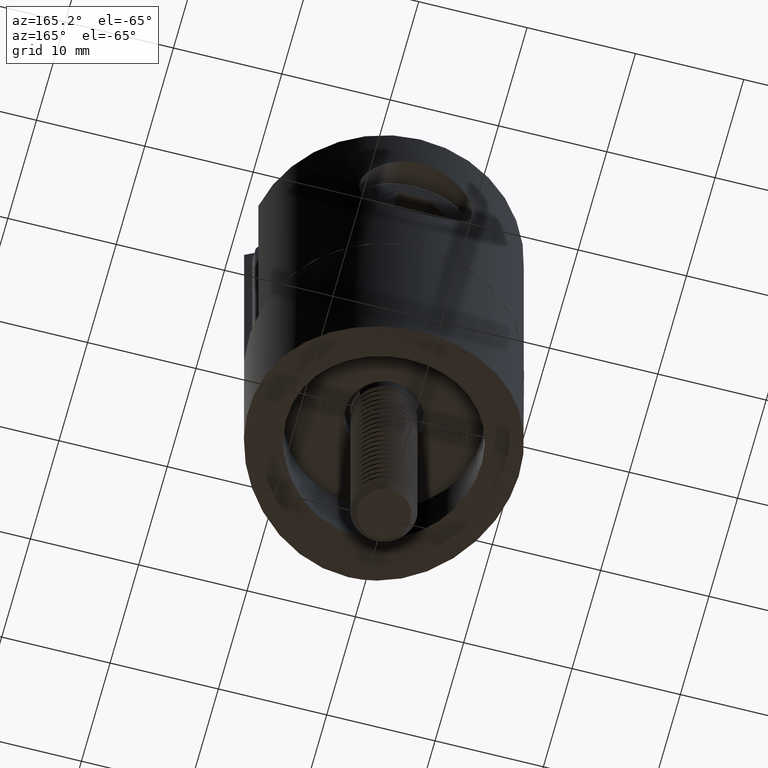
[diagram: clean part render]
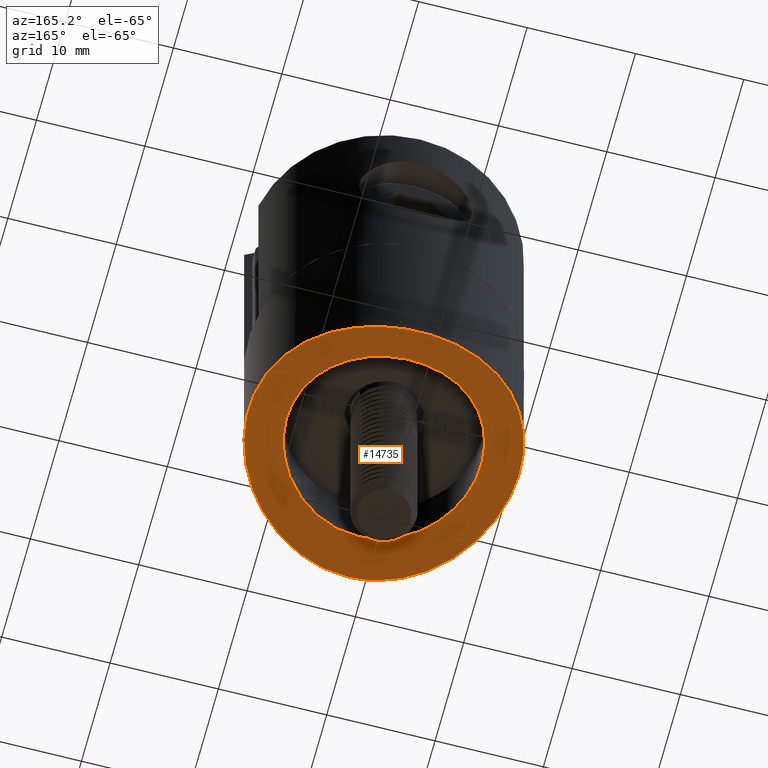
[diagram: same view with one face highlighted and labeled with its STEP entity id]
A machine part, auxiliary view. The second image highlights one B-rep face of the part: STEP entity #14735.
In plain terms, the highlighted cylindrical surface (partial cylindrical patch) has radius 30.15 mm, axis along (1, 0, 0).
Its self-contained STEP definition (entity closure, byte-faithful):
#318 = CARTESIAN_POINT ( 'NONE',  ( 1.185822052375740343, -8.940945296865521641, -1.355963288929341592 ) ) ;
#530 = CARTESIAN_POINT ( 'NONE',  ( 9.121130435062973163, -8.556701006457322123, -1.238168141207277140 ) ) ;
#549 = CARTESIAN_POINT ( 'NONE',  ( 8.538774403114143041, 2.905219611666121082, -0.1352452541652090223 ) ) ;
#606 = CARTESIAN_POINT ( 'NONE',  ( 12.50046669840313918, 0.3987437818803017953, 0.0001934901100499889707 ) ) ;
#681 = CARTESIAN_POINT ( 'NONE',  ( 12.09482616786062614, 3.262078009258805977, -0.1660781925552853588 ) ) ;
#700 = CARTESIAN_POINT ( 'NONE',  ( -7.150411678394052117, -5.497470882763403566, -0.5012341789338921050 ) ) ;
#777 = CARTESIAN_POINT ( 'NONE',  ( -5.489248077110187474, -7.138247435269766683, -0.8565750722591767286 ) ) ;
#852 = CARTESIAN_POINT ( 'NONE',  ( -8.523417378248598908, -2.905080082330754099, -0.1389306601383623885 ) ) ;
#911 = CARTESIAN_POINT ( 'NONE',  ( 1.658381484336094225, 12.39636410885525919, -2.666283003099221727 ) ) ;
#984 = CARTESIAN_POINT ( 'NONE',  ( 6.633394415637861030, 10.60249624133748902, -1.924697154711569214 ) ) ;
#1055 = CARTESIAN_POINT ( 'NONE',  ( -3.262972752893349426, 12.09486715300379700, -2.531741867291250170 ) ) ;
#1127 = CARTESIAN_POINT ( 'NONE',  ( 0.4268192800074673832, 12.49948415367837207, -2.713065109207505099 ) ) ;
#1213 = CARTESIAN_POINT ( 'NONE',  ( -4.045518074302074218, 11.85558442828115489, -2.426658673275744693 ) ) ;
#1481 = EDGE_LOOP ( 'NONE', ( #9146 ) ) ;
#2105 = CARTESIAN_POINT ( 'NONE',  ( 4.001985308507586048, -8.082779981349148102, -1.102682765100396978 ) ) ;
#2175 = CARTESIAN_POINT ( 'NONE',  ( 8.421668585497533499, -3.187678065357707258, -0.1677500759989492551 ) ) ;
#2253 = CARTESIAN_POINT ( 'NONE',  ( 8.941615196116021735, -1.182970758504127140, -0.01758196660093610392 ) ) ;
#2329 = CARTESIAN_POINT ( 'NONE',  ( -3.252606517456513302E-16, -9.000000000000001776, -1.374619898253298667 ) ) ;
#2343 = EDGE_CURVE ( 'NONE', #20523, #20523, #11895, .T. ) ;
#2459 = CARTESIAN_POINT ( 'NONE',  ( 11.85499949853712565, 4.048508168866431944, -0.2630838204178065354 ) ) ;
#2475 = CARTESIAN_POINT ( 'NONE',  ( 5.496716112329071535, 7.150413148691908027, -0.8582410347823666852 ) ) ;
#2553 = CARTESIAN_POINT ( 'NONE',  ( 4.524716325586240373, 7.801874030609413424, -1.024988187403319317 ) ) ;
#2630 = CARTESIAN_POINT ( 'NONE',  ( -2.344530190291385985, -8.709286904477878011, -1.285047345396048701 ) ) ;
#2685 = AXIS2_PLACEMENT_3D ( 'NONE', #4926, #6729, #15625 ) ;
#2686 = CARTESIAN_POINT ( 'NONE',  ( -2.068747452225058403, -12.33442740760718515, -2.638325178309926411 ) ) ;
#2702 = CARTESIAN_POINT ( 'NONE',  ( 2.913594913920761531, 8.535557776549191900, -1.232500696866663636 ) ) ;
#2753 = CARTESIAN_POINT ( 'NONE',  ( -6.272618286738919302, 10.81993244727826209, -2.007601374604049305 ) ) ;
#2768 = CARTESIAN_POINT ( 'NONE',  ( -8.925883202786161874, 1.190312538106021778, -0.02205456905166851625 ) ) ;
#2831 = CARTESIAN_POINT ( 'NONE',  ( -8.242190596530241109, 9.406387361605119679, -1.503606732901479504 ) ) ;
#2904 = CARTESIAN_POINT ( 'NONE',  ( -11.37492637110342386, 5.198871543229085290, -0.4491531032744996432 ) ) ;
#2982 = CARTESIAN_POINT ( 'NONE',  ( -1.633113527107586282, 12.39978903973062963, -2.667829302353221355 ) ) ;
#3299 = CYLINDRICAL_SURFACE ( 'NONE', #2685, 30.14999999999999147 ) ;
#3934 = CARTESIAN_POINT ( 'NONE',  ( 8.767144284894179407, -2.055518577043168094, -0.06873959641688333344 ) ) ;
#4075 = CARTESIAN_POINT ( 'NONE',  ( 11.68857402544076685, -4.448898902959933288, -0.3276205210885341779 ) ) ;
#4091 = CARTESIAN_POINT ( 'NONE',  ( 8.070324007166149727, 3.994528449558298444, -0.2646407739215885790 ) ) ;
#4245 = CARTESIAN_POINT ( 'NONE',  ( -7.139971559587332095, 5.486982158268125964, -0.5025906670222899386 ) ) ;
#4304 = CARTESIAN_POINT ( 'NONE',  ( 7.626844410707852795, -9.911884683804945695, -1.674556796344226051 ) ) ;
#4322 = CARTESIAN_POINT ( 'NONE',  ( 7.142291056877425603, 5.483959806165431772, -0.5020311841665126007 ) ) ;
#4396 = CARTESIAN_POINT ( 'NONE',  ( -7.314278040639221601, 5.252290663637790402, -0.4599944814719212349 ) ) ;
#4453 = CARTESIAN_POINT ( 'NONE',  ( -9.413274989318676234, -8.264303033174362767, -1.148551276442933533 ) ) ;
#4473 = CARTESIAN_POINT ( 'NONE',  ( -1.186796273005575442, -8.940918006786423788, -1.355952779559454813 ) ) ;
#4531 = CARTESIAN_POINT ( 'NONE',  ( -9.408435013837349814, 8.270018110926438126, -1.150157054897014586 ) ) ;
#4549 = CARTESIAN_POINT ( 'NONE',  ( -3.992972265698331302, 8.087099378350417922, -1.103895169293614309 ) ) ;
#4609 = CARTESIAN_POINT ( 'NONE',  ( -12.42048116431453231, -1.635609615215579460, -0.03325049987800967471 ) ) ;
#4682 = CARTESIAN_POINT ( 'NONE',  ( -11.38087713078058805, -5.185789762600093056, -0.4468707003644584730 ) ) ;
#4761 = CARTESIAN_POINT ( 'NONE',  ( -12.49968913360635270, 0.4215127814251430904, -0.0001288832182737829652 ) ) ;
#4926 = CARTESIAN_POINT ( 'NONE',  ( -12.50002500000000261, 0.000000000000000000, -30.14999999999999858 ) ) ;
#5487 = CARTESIAN_POINT ( 'NONE',  ( -0.4179610409776984836, -12.50000000000000355, -2.713300125561750598 ) ) ;
#5681 = CARTESIAN_POINT ( 'NONE',  ( 6.777056205733043903, -5.950782728535904731, -0.5900810819314219469 ) ) ;
#5889 = CARTESIAN_POINT ( 'NONE',  ( 5.571122609339520970, -11.21963432711265085, -2.163245062869731949 ) ) ;
#5908 = CARTESIAN_POINT ( 'NONE',  ( 8.084037403959721146, -3.998938871832793840, -0.2614169671120162297 ) ) ;
#5970 = CARTESIAN_POINT ( 'NONE',  ( 12.48024910527452391, 0.8163771649240552097, -0.008206313428066153506 ) ) ;
#6041 = CARTESIAN_POINT ( 'NONE',  ( 11.21964762912788771, 5.572336904916894262, -0.5093650787158180426 ) ) ;
#6060 = CARTESIAN_POINT ( 'NONE',  ( -8.696334846089261106, -2.337069603858380251, -0.08936329893428017479 ) ) ;
#6133 = CARTESIAN_POINT ( 'NONE',  ( -7.801771437058368619, 4.524736934712957570, -0.3373987164168645858 ) ) ;
#6214 = CARTESIAN_POINT ( 'NONE',  ( 6.570573775608319345, 6.157421072802897299, -0.6346853459270830333 ) ) ;
#6278 = CARTESIAN_POINT ( 'NONE',  ( 7.644477361970684726, 9.923273549906904023, -1.675735635893778275 ) ) ;
#6295 = CARTESIAN_POINT ( 'NONE',  ( -8.984944741643683841, 0.5991684886256979370, -0.004503869552738098102 ) ) ;
#6350 = CARTESIAN_POINT ( 'NONE',  ( -5.180041862081955273, 11.38353815663128543, -2.231071507845087787 ) ) ;
#6364 = CARTESIAN_POINT ( 'NONE',  ( 5.947380817729807312, 6.780395080150963594, -0.7692362906615368701 ) ) ;
#6418 = CARTESIAN_POINT ( 'NONE',  ( 9.396992786125444752, 8.253045305337051829, -1.149718565743948817 ) ) ;
#6503 = CARTESIAN_POINT ( 'NONE',  ( -12.39587866497697810, 1.662960769600799749, -0.04304277310918165622 ) ) ;
#6729 = DIRECTION ( 'NONE',  ( 1.000000000000000000, -0.000000000000000000, -0.000000000000000000 ) ) ;
#7479 = CARTESIAN_POINT ( 'NONE',  ( 7.148476775443497466, -5.499914224820166453, -0.5016990754363696015 ) ) ;
#7555 = CARTESIAN_POINT ( 'NONE',  ( 6.158374507734751369, -6.569589020399924095, -0.7236932238464887091 ) ) ;
#7636 = CARTESIAN_POINT ( 'NONE',  ( 8.999613545077416177, -0.5966883446060962104, -0.0001153596561852563367 ) ) ;
#7694 = CARTESIAN_POINT ( 'NONE',  ( 3.261407736970792559, -12.07408955652969595, -2.522908943252531344 ) ) ;
#7771 = CARTESIAN_POINT ( 'NONE',  ( 12.39834598114285491, 1.644416716344702101, -0.04202610632387240169 ) ) ;
#7843 = CARTESIAN_POINT ( 'NONE',  ( 12.41698358604476127, -1.658201638103253828, -0.03469062571479154811 ) ) ;
#7864 = CARTESIAN_POINT ( 'NONE',  ( 2.352453121932788882, 8.707297283988934211, -1.284443533166231610 ) ) ;
#7923 = CARTESIAN_POINT ( 'NONE',  ( 11.82791737866480553, -4.064510292435568495, -0.2725868367894779265 ) ) ;
#7940 = CARTESIAN_POINT ( 'NONE',  ( -4.004150485387577341, -8.081598134896680108, -1.102356813288286830 ) ) ;
#7998 = CARTESIAN_POINT ( 'NONE',  ( -6.292979418198323849, -10.83050644623355119, -2.008358632302218449 ) ) ;
#8014 = CARTESIAN_POINT ( 'NONE',  ( -8.423638435984464934, -3.182536749231318574, -0.1671971833313853906 ) ) ;
#8068 = FACE_BOUND ( 'NONE', #1481, .T. ) ;
#8072 = CARTESIAN_POINT ( 'NONE',  ( -11.20537173176354528, -5.554998882790872727, -0.5138671737344115975 ) ) ;
#8093 = CARTESIAN_POINT ( 'NONE',  ( 3.997935506280577478, 8.084633174538929268, -1.103206391467732361 ) ) ;
#8152 = CARTESIAN_POINT ( 'NONE',  ( -10.80821814254011315, 6.292872337105474223, -0.6617393255059619284 ) ) ;
#8233 = CARTESIAN_POINT ( 'NONE',  ( -9.920838826100780494, 7.647293568899648619, -0.9777996160190161046 ) ) ;
#8306 = CARTESIAN_POINT ( 'NONE',  ( -7.622621575560834195, -9.915142464939885159, -1.675690628560317252 ) ) ;
#9146 = ORIENTED_EDGE ( 'NONE', *, *, #2343, .T. ) ;
#9277 = CARTESIAN_POINT ( 'NONE',  ( 8.693882228435573012, -2.346004742452135527, -0.09007234467078339968 ) ) ;
#9358 = CARTESIAN_POINT ( 'NONE',  ( 9.000382642342637851, 0.5849728478716058611, 0.0001142215727207404510 ) ) ;
#9413 = CARTESIAN_POINT ( 'NONE',  ( 2.862833968643659688, -12.17467070451390221, -2.567257016650688506 ) ) ;
#9433 = CARTESIAN_POINT ( 'NONE',  ( 0.5982730125851156711, -9.000000000000001776, -1.374619898253298667 ) ) ;
#9489 = CARTESIAN_POINT ( 'NONE',  ( -7.047314121155778821E-16, -12.50000000000000178, -2.713300125561750598 ) ) ;
#9510 = CARTESIAN_POINT ( 'NONE',  ( 7.792504131435094017, 4.512567614622505552, -0.3384638582722340749 ) ) ;
#9587 = CARTESIAN_POINT ( 'NONE',  ( 7.641688997561237429, 4.763400890828465073, -0.3776443783837490908 ) ) ;
#9646 = CARTESIAN_POINT ( 'NONE',  ( 9.906276240647176934, -7.634084568871309706, -0.9807012696870232027 ) ) ;
#9666 = CARTESIAN_POINT ( 'NONE',  ( -6.778517652214133271, -5.949128868562413963, -0.5897457015168182659 ) ) ;
#9722 = CARTESIAN_POINT ( 'NONE',  ( 7.297933054517131701, -10.15654818944680571, -1.761178702500949322 ) ) ;
#9743 = CARTESIAN_POINT ( 'NONE',  ( -1.173659102718640268, 8.928039983829982873, -1.352195966243980418 ) ) ;
#9792 = CARTESIAN_POINT ( 'NONE',  ( -4.055767878796776138, -11.85251096676005034, -2.425299474262500699 ) ) ;
#9811 = CARTESIAN_POINT ( 'NONE',  ( -0.5982730125851184466, -9.000000000000003553, -1.374619898253298667 ) ) ;
#9861 = VERTEX_POINT ( 'NONE', #10143 ) ;
#9871 = CARTESIAN_POINT ( 'NONE',  ( -10.60492425941184180, -6.629515832642427497, -0.7358518854173757839 ) ) ;
#9886 = CARTESIAN_POINT ( 'NONE',  ( 0.5936280103364708349, 8.985301886248130643, -1.370010749449922738 ) ) ;
#9946 = CARTESIAN_POINT ( 'NONE',  ( 9.914827826804215150, 7.623150228040136867, -0.9778101494122687365 ) ) ;
#10017 = CARTESIAN_POINT ( 'NONE',  ( 3.291384441742252864, 12.08747723598280288, -2.528489124173660674 ) ) ;
#10101 = CARTESIAN_POINT ( 'NONE',  ( -12.47904546394417125, 0.8346680219566126047, -0.008705381550254387077 ) ) ;
#10143 = CARTESIAN_POINT ( 'NONE',  ( 0.000000000000000000, -12.50000000000000000, -2.713300125561750153 ) ) ;
#10292 = EDGE_LOOP ( 'NONE', ( #21364 ) ) ;
#11154 = EDGE_CURVE ( 'NONE', #9861, #9861, #11179, .T. ) ;
#11179 = B_SPLINE_CURVE_WITH_KNOTS ( 'NONE', 3,
 ( #9489, #14950, #15020, #9413, #7694, #22012, #16659, #5889, #21864, #9722, #4304, #11190, #20330, #530, #21945, #9646, #16891, #11266, #18593, #4075, #7923, #22169, #18366, #7843, #16585, #606, #5970, #7771, #11342, #681, #2459, #6041, #15477, #15249, #9946, #6418, #13513, #22466, #6278, #984, #11804, #15319, #22546, #20701, #10017, #13675, #911, #22242, #1127, #22388, #11721, #2982, #13435, #1055, #1213, #6350, #11568, #2753, #18907, #17275, #13594, #2831, #22309, #4531, #8233, #20551, #8152, #18673, #2904, #18751, #17198, #17037, #6503, #10101, #4761, #18830, #4609, #15404, #17115, #4682, #8072, #11879, #9871, #18990, #4453, #11644, #20621, #8306, #20780, #7998, #20478, #9792, #13355, #2686, #15174, #16960, #5487, #19634 ),
 .UNSPECIFIED., .T., .F.,
 ( 4, 2, 2, 2, 2, 2, 2, 2, 2, 2, 2, 2, 2, 2, 2, 2, 2, 2, 2, 2, 2, 2, 2, 2, 2, 2, 2, 2, 2, 2, 2, 2, 2, 2, 2, 2, 2, 2, 2, 2, 2, 2, 2, 2, 2, 2, 2, 2, 4 ),
 ( 0.000000000000000000, 0.002469649643039576858, 0.003704474464559365070, 0.004939299286079152848, 0.007408948929118733609, 0.008643773750638523989, 0.009878598572158316105, 0.01111342339367810995, 0.01234824821519790207, 0.01481789785823748977, 0.01605272267975728362, 0.01728754750127707573, 0.01975719714431667037, 0.02099202196583645902, 0.02222684678735625460, 0.02469649643039583883, 0.02716614607343543000, 0.02840097089495522906, 0.02963579571647502464, 0.03210544535951460887, 0.03334027018103440099, 0.03457509500255419310, 0.03704474464559377733, 0.03827956946711356945, 0.03951439428863336156, 0.04074921911015315368, 0.04198404393167293885, 0.04445369357471252308, 0.04568851839623230132, 0.04692334321775209344, 0.04815816803927188555, 0.04939299286079167073, 0.05186264250383124802, 0.05309746732535104013, 0.05433229214687082531, 0.05680194178991040954, 0.05803676661143018778, 0.05927159143294997989, 0.06174124107598955025, 0.06421089071902913448, 0.06544571554054891271, 0.06668054036206870483, 0.06915019000510828906, 0.07038501482662808117, 0.07161983964814787329, 0.07408948929118745752, 0.07655913893422704175, 0.07779396375574683387, 0.07902878857726663986 ),
 .UNSPECIFIED. ) ;
#11190 = CARTESIAN_POINT ( 'NONE',  ( 8.252814787358117243, -9.397087939130715384, -1.500548663300428132 ) ) ;
#11207 = CARTESIAN_POINT ( 'NONE',  ( 8.709848007106298695, 2.342366946694560248, -0.08554039584317563172 ) ) ;
#11266 = CARTESIAN_POINT ( 'NONE',  ( 10.83361646961865077, -6.288926334475945623, -0.6549457112821076565 ) ) ;
#11342 = CARTESIAN_POINT ( 'NONE',  ( 12.33713063173210323, 2.052851923030857062, -0.06724989374358400496 ) ) ;
#11360 = CARTESIAN_POINT ( 'NONE',  ( -7.809001942142345776, -4.513320501023894593, -0.3355498310921940508 ) ) ;
#11431 = CARTESIAN_POINT ( 'NONE',  ( -9.000167046277798732, -0.5907093811988471943, 4.986455872365255814E-05 ) ) ;
#11508 = CARTESIAN_POINT ( 'NONE',  ( -1.468693937511236003, 8.884351151924308354, -1.338639035645577069 ) ) ;
#11568 = CARTESIAN_POINT ( 'NONE',  ( -5.553223405472746954, 11.20617633913129296, -2.159159526540709084 ) ) ;
#11586 = CARTESIAN_POINT ( 'NONE',  ( -5.493494837923749152, 7.152962408053002541, -0.8588605877377899489 ) ) ;
#11644 = CARTESIAN_POINT ( 'NONE',  ( -8.552671180545294405, -9.125044018504063104, -1.412461312202216268 ) ) ;
#11660 = CARTESIAN_POINT ( 'NONE',  ( -5.943375088400154382, -6.764814369794475368, -0.7680904809346151829 ) ) ;
#11721 = CARTESIAN_POINT ( 'NONE',  ( -0.8080324598438494155, 12.48074162724653036, -2.704498311775485053 ) ) ;
#11804 = CARTESIAN_POINT ( 'NONE',  ( 6.281158253339032882, 10.81496218645531115, -2.005690203197648458 ) ) ;
#11879 = CARTESIAN_POINT ( 'NONE',  ( -10.81694288790286684, -6.277906880056519867, -0.6585390885903443792 ) ) ;
#11895 = B_SPLINE_CURVE_WITH_KNOTS ( 'NONE', 3,
 ( #2329, #9433, #318, #12774, #16678, #18311, #14808, #2105, #14731, #14585, #18385, #19987, #7555, #5681, #7479, #12931, #5908, #2175, #16522, #9277, #3934, #2253, #7636, #9358, #21884, #11207, #549, #13011, #4091, #9510, #9587, #15111, #4322, #18541, #6214, #6364, #2475, #2553, #8093, #2702, #7864, #22186, #13230, #9886, #16752, #20416, #9743, #11508, #15192, #18686, #4549, #16829, #11586, #18610, #13450, #18850, #4245, #4396, #6133, #22109, #20345, #16909, #20567, #2768, #6295, #22328, #11431, #22030, #13370, #6060, #852, #8014, #15265, #11360, #700, #9666, #13304, #11660, #777, #13154, #20499, #7940, #15040, #2630, #4473, #9811, #22259 ),
 .UNSPECIFIED., .T., .F.,
 ( 4, 2, 2, 2, 2, 2, 2, 2, 2, 2, 2, 2, 2, 2, 2, 2, 2, 2, 2, 2, 2, 2, 1, 2, 2, 2, 2, 2, 2, 2, 2, 2, 2, 2, 2, 2, 2, 2, 2, 2, 2, 2, 2, 4 ),
 ( 0.000000000000000000, 0.001768498440205643063, 0.002652747660308465462, 0.003536996880411287427, 0.005305495320616930056, 0.006189744540719749853, 0.007073993760822569650, 0.008842492201028210111, 0.01061099064123384970, 0.01149523986133667124, 0.01237948908143948930, 0.01414798752164513236, 0.01591648596185077716, 0.01768498440205641675, 0.01856923362215923828, 0.01945348284226206328, 0.02033773206236488135, 0.02122198128246770288, 0.02299047972267334941, 0.02475897816287898900, 0.02652747660308463554, 0.02741172582318745360, 0.02829597504329027513, 0.02918022426339309666, 0.03006447348349592166, 0.03183297192370156820, 0.03360147036390720432, 0.03536996880411284738, 0.03625421802421566891, 0.03713846724431849045, 0.03890696568452414045, 0.04067546412472979045, 0.04155971334483261198, 0.04244396256493544045, 0.04421246100514109045, 0.04509671022524391198, 0.04598095944534673352, 0.04774945788555238352, 0.04951795632575803352, 0.05040220554586085505, 0.05128645476596368352, 0.05305495320616932658, 0.05482345164637497659, 0.05659195008658062659 ),
 .UNSPECIFIED. ) ;
#12774 = CARTESIAN_POINT ( 'NONE',  ( 2.051896141837048049, -8.767918305303421533, -1.302994144599136872 ) ) ;
#12931 = CARTESIAN_POINT ( 'NONE',  ( 7.806731172558970755, -4.517158962094453223, -0.3361428341613331705 ) ) ;
#13011 = CARTESIAN_POINT ( 'NONE',  ( 8.197899314751980526, 3.725880989780903985, -0.2298372880235729221 ) ) ;
#13154 = CARTESIAN_POINT ( 'NONE',  ( -5.250954232695634438, -7.315303849041924877, -0.9004315388040798895 ) ) ;
#13230 = CARTESIAN_POINT ( 'NONE',  ( 1.184219211297574459, 8.926683785110379077, -1.351775075883669075 ) ) ;
#13304 = CARTESIAN_POINT ( 'NONE',  ( -6.159861680690958963, -6.568197091956854194, -0.7233818782611634024 ) ) ;
#13355 = CARTESIAN_POINT ( 'NONE',  ( -3.273468071776288291, -12.09155361239973736, -2.530292631704961881 ) ) ;
#13370 = CARTESIAN_POINT ( 'NONE',  ( -8.769059982288009536, -2.047194681354169710, -0.06818045629616274750 ) ) ;
#13435 = CARTESIAN_POINT ( 'NONE',  ( -2.047589598883504003, 12.33807430247029480, -2.639960088357599322 ) ) ;
#13450 = CARTESIAN_POINT ( 'NONE',  ( -6.567840302755916682, 6.160332588591958647, -0.6352939671100255037 ) ) ;
#13513 = CARTESIAN_POINT ( 'NONE',  ( 9.123070557769834110, 8.554692462316060286, -1.237563721367123559 ) ) ;
#13594 = CARTESIAN_POINT ( 'NONE',  ( -7.616393117515790401, 9.919898432219671491, -1.677353731971493067 ) ) ;
#13675 = CARTESIAN_POINT ( 'NONE',  ( 2.069818521379552134, 12.33444083276540582, -2.638326357862960325 ) ) ;
#14585 = CARTESIAN_POINT ( 'NONE',  ( 5.249199105595239168, -7.316559113750023435, -0.9007461802484273417 ) ) ;
#14731 = CARTESIAN_POINT ( 'NONE',  ( 4.517486191172507048, -7.806204748358019252, -1.026140150458848765 ) ) ;
#14735 = ADVANCED_FACE ( 'NONE', ( #8068, #18118 ), #3299, .F. ) ;
#14808 = CARTESIAN_POINT ( 'NONE',  ( 3.185950833664215498, -8.422382201288217018, -1.200045842033330423 ) ) ;
#14950 = CARTESIAN_POINT ( 'NONE',  ( 0.8359220819553887516, -12.49999999999999822, -2.713300125561750598 ) ) ;
#15020 = CARTESIAN_POINT ( 'NONE',  ( 1.655731949522232682, -12.41701462078576412, -2.675074760745705493 ) ) ;
#15040 = CARTESIAN_POINT ( 'NONE',  ( -2.919078547738528595, -8.533723100483625146, -1.231954195334064694 ) ) ;
#15111 = CARTESIAN_POINT ( 'NONE',  ( 7.316582407837613822, 5.249097127270075269, -0.4594269732762614189 ) ) ;
#15174 = CARTESIAN_POINT ( 'NONE',  ( -1.661928636402032922, -12.39595480960208818, -2.666097943039591023 ) ) ;
#15192 = CARTESIAN_POINT ( 'NONE',  ( -2.345185460562218882, 8.709485303202015416, -1.285103849322314584 ) ) ;
#15249 = CARTESIAN_POINT ( 'NONE',  ( 10.15686585885435811, 7.297410080756332462, -0.8944038724053163802 ) ) ;
#15265 = CARTESIAN_POINT ( 'NONE',  ( -8.085590271733556378, -3.996014088971451717, -0.2609988287581045951 ) ) ;
#15319 = CARTESIAN_POINT ( 'NONE',  ( 5.562776385117345512, 11.20142290011085962, -2.157256189403026880 ) ) ;
#15404 = CARTESIAN_POINT ( 'NONE',  ( -12.09372204135673101, -3.268861935426436993, -0.1665318731537669128 ) ) ;
#15477 = CARTESIAN_POINT ( 'NONE',  ( 10.83365927472769563, 6.287948677036774292, -0.6548716547023477608 ) ) ;
#15625 = DIRECTION ( 'NONE',  ( 0.000000000000000000, 0.000000000000000000, -1.000000000000000000 ) ) ;
#16522 = CARTESIAN_POINT ( 'NONE',  ( 8.521262721946330387, -2.911255412546897237, -0.1395421424772234908 ) ) ;
#16585 = CARTESIAN_POINT ( 'NONE',  ( 12.49904181913646362, -0.8406014093336691140, -0.0003972555312525182175 ) ) ;
#16659 = CARTESIAN_POINT ( 'NONE',  ( 4.440183836537523021, -11.69194884903093090, -2.358816709288504399 ) ) ;
#16678 = CARTESIAN_POINT ( 'NONE',  ( 2.338028052777481491, -8.696060686071160006, -1.281173493995741097 ) ) ;
#16752 = CARTESIAN_POINT ( 'NONE',  ( 0.003603735765757023601, 9.014442188886807372, -1.379149002117463274 ) ) ;
#16829 = CARTESIAN_POINT ( 'NONE',  ( -4.519628069823388827, 7.804890701078318394, -1.025793565766960569 ) ) ;
#16891 = CARTESIAN_POINT ( 'NONE',  ( 10.15035112201044853, -7.306663545197336518, -0.8966797043309225890 ) ) ;
#16909 = CARTESIAN_POINT ( 'NONE',  ( -8.708336872535467066, 2.347561824798656271, -0.08597859580138686453 ) ) ;
#16960 = CARTESIAN_POINT ( 'NONE',  ( -0.8373404636031858139, -12.47880456543025751, -2.703615820365576905 ) ) ;
#17037 = CARTESIAN_POINT ( 'NONE',  ( -12.33332525357909404, 2.075738025577931634, -0.06881238119245021434 ) ) ;
#17115 = CARTESIAN_POINT ( 'NONE',  ( -11.85220439220557864, -4.054919229359955857, -0.2641613359372344538 ) ) ;
#17198 = CARTESIAN_POINT ( 'NONE',  ( -12.08826796186988162, 3.286666750316775687, -0.1687313592755735614 ) ) ;
#17275 = CARTESIAN_POINT ( 'NONE',  ( -7.292052212528301602, 10.16068214841935280, -1.762670375432310754 ) ) ;
#18118 = FACE_OUTER_BOUND ( 'NONE', #10292, .T. ) ;
#18311 = CARTESIAN_POINT ( 'NONE',  ( 2.905101640344843528, -8.523393167669352621, -1.229723649333260171 ) ) ;
#18366 = CARTESIAN_POINT ( 'NONE',  ( 12.17263692888464632, -2.871791898751058447, -0.1343364368593815417 ) ) ;
#18385 = CARTESIAN_POINT ( 'NONE',  ( 5.487324563882221007, -7.139733180868534923, -0.8569368033344592073 ) ) ;
#18541 = CARTESIAN_POINT ( 'NONE',  ( 6.769832166260909112, 5.937634978461404422, -0.5895473491554165113 ) ) ;
#18593 = CARTESIAN_POINT ( 'NONE',  ( 11.21761321298858505, -5.574675828391308485, -0.5101017825603603173 ) ) ;
#18610 = CARTESIAN_POINT ( 'NONE',  ( -5.944558304556906592, 6.782854999335880208, -0.7698084196527967826 ) ) ;
#18673 = CARTESIAN_POINT ( 'NONE',  ( -11.19705371534951155, 5.571697206724198104, -0.5170124676130464225 ) ) ;
#18686 = CARTESIAN_POINT ( 'NONE',  ( -2.907996256950035718, 8.537479817810201155, -1.233070347075501116 ) ) ;
#18751 = CARTESIAN_POINT ( 'NONE',  ( -11.84812135127634569, 4.067048257583641302, -0.2657917071007130372 ) ) ;
#18830 = CARTESIAN_POINT ( 'NONE',  ( -12.50061130516822772, -0.8150600247256440944, 0.0002534432118774302117 ) ) ;
#18850 = CARTESIAN_POINT ( 'NONE',  ( -6.767252441991018053, 5.940577536168964556, -0.5901388382987962089 ) ) ;
#18907 = CARTESIAN_POINT ( 'NONE',  ( -6.620163701035582271, 10.61069836358274010, -1.927791986236644606 ) ) ;
#18990 = CARTESIAN_POINT ( 'NONE',  ( -9.925962110088979884, -7.640999350971783954, -0.9760735099662291026 ) ) ;
#19634 = CARTESIAN_POINT ( 'NONE',  ( -7.047314121155778821E-16, -12.50000000000000178, -2.713300125561750598 ) ) ;
#19987 = CARTESIAN_POINT ( 'NONE',  ( 5.941807679533817499, -6.766198508971879910, -0.7684088403125616251 ) ) ;
#20330 = CARTESIAN_POINT ( 'NONE',  ( 8.551489946550498544, -9.126016229515785838, -1.412794476086856710 ) ) ;
#20345 = CARTESIAN_POINT ( 'NONE',  ( -8.537116890696029969, 2.910481124914769513, -0.1357251670767977425 ) ) ;
#20416 = CARTESIAN_POINT ( 'NONE',  ( -0.5853078899808622504, 8.985810387282127110, -1.370169791965520245 ) ) ;
#20478 = CARTESIAN_POINT ( 'NONE',  ( -5.579030759424391306, -11.21631334660562906, -2.161871259947494295 ) ) ;
#20499 = CARTESIAN_POINT ( 'NONE',  ( -4.519088603208958332, -7.805293154458333937, -1.025893128664962184 ) ) ;
#20523 = VERTEX_POINT ( 'NONE', #22434 ) ;
#20551 = CARTESIAN_POINT ( 'NONE',  ( -10.59791067867459979, 6.640619303380938199, -0.7383757026140648216 ) ) ;
#20567 = CARTESIAN_POINT ( 'NONE',  ( -8.881973556949624538, 1.482258457675602603, -0.03507193694479349144 ) ) ;
#20621 = CARTESIAN_POINT ( 'NONE',  ( -8.249175320055373462, -9.400293416869983432, -1.501599905801670021 ) ) ;
#20701 = CARTESIAN_POINT ( 'NONE',  ( 4.071705717012477521, 11.84613874646968767, -2.422640445793128539 ) ) ;
#20780 = CARTESIAN_POINT ( 'NONE',  ( -7.298426985736893968, -10.15607347816128758, -1.761023112945841129 ) ) ;
#21364 = ORIENTED_EDGE ( 'NONE', *, *, #11154, .F. ) ;
#21864 = CARTESIAN_POINT ( 'NONE',  ( 6.284803287351304668, -10.83570208202374197, -2.010301289225040478 ) ) ;
#21884 = CARTESIAN_POINT ( 'NONE',  ( 8.941110661511325830, 1.185190009437001590, -0.01772927832229496958 ) ) ;
#21945 = CARTESIAN_POINT ( 'NONE',  ( 9.392094309547976749, -8.258457521913301846, -1.151291149748219000 ) ) ;
#22012 = CARTESIAN_POINT ( 'NONE',  ( 4.050937341656063673, -11.83259589861196659, -2.418619342393596217 ) ) ;
#22030 = CARTESIAN_POINT ( 'NONE',  ( -8.942243827038364401, -1.177264406628017790, -0.01739239610692626739 ) ) ;
#22109 = CARTESIAN_POINT ( 'NONE',  ( -8.080226599631158635, 4.007892623624734973, -0.2624709813235530653 ) ) ;
#22169 = CARTESIAN_POINT ( 'NONE',  ( 12.06997048598656974, -3.276535655421530802, -0.1759382908947183521 ) ) ;
#22186 = CARTESIAN_POINT ( 'NONE',  ( 1.481083826779612256, 8.882238238119652962, -1.337987524051404753 ) ) ;
#22242 = CARTESIAN_POINT ( 'NONE',  ( 0.8377064872992108224, 12.47871468173066134, -2.703575406311896856 ) ) ;
#22259 = CARTESIAN_POINT ( 'NONE',  ( -3.252606517456513302E-16, -9.000000000000001776, -1.374619898253298667 ) ) ;
#22309 = CARTESIAN_POINT ( 'NONE',  ( -8.544953871418631053, 9.132317645400364725, -1.414766017614685678 ) ) ;
#22328 = CARTESIAN_POINT ( 'NONE',  ( -8.999915939378457352, 0.2991641566214264802, -2.509272194480731757E-05 ) ) ;
#22388 = CARTESIAN_POINT ( 'NONE',  ( -0.3960502100652990021, 12.50049691160115728, -2.713526515372037373 ) ) ;
#22434 = CARTESIAN_POINT ( 'NONE',  ( 0.000000000000000000, -9.000000000000000000, -1.374619898253298667 ) ) ;
#22466 = CARTESIAN_POINT ( 'NONE',  ( 8.266012319802237940, 9.411469515240074912, -1.500328442947868712 ) ) ;
#22546 = CARTESIAN_POINT ( 'NONE',  ( 5.195847361368076456, 11.37620841313155040, -2.228088802819849779 ) ) ;